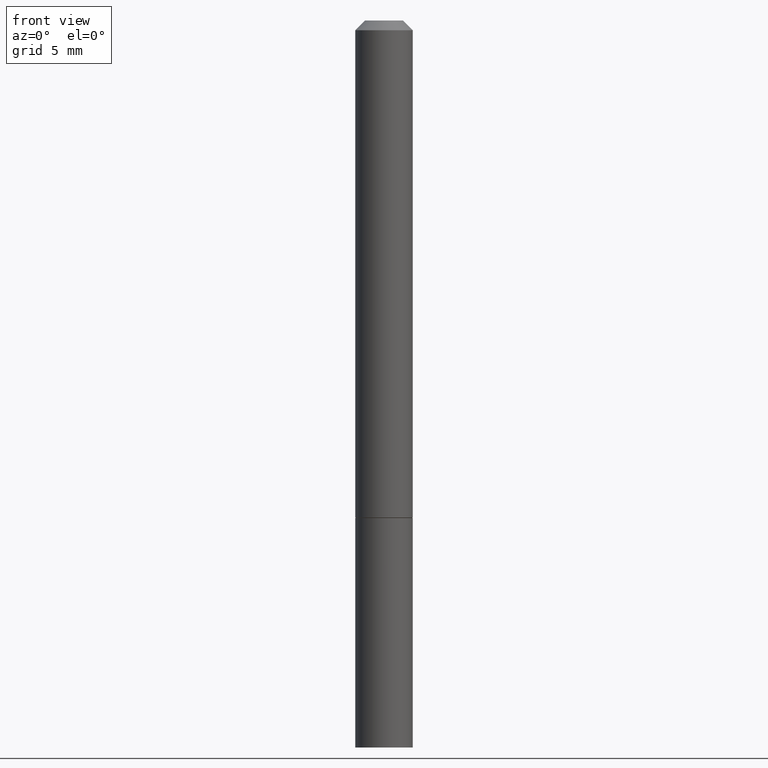
[diagram: clean part render]
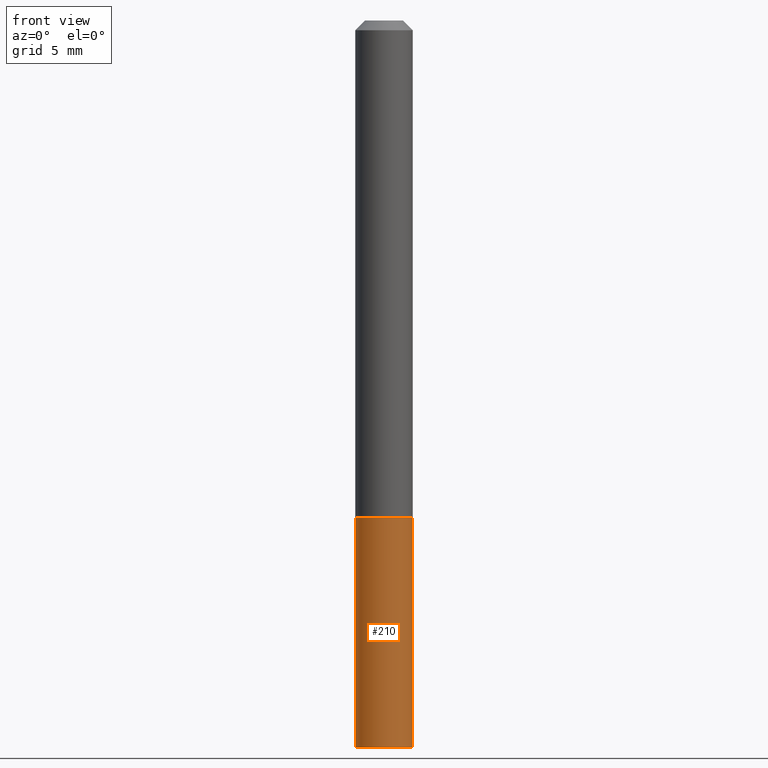
[diagram: same view with one face highlighted and labeled with its STEP entity id]
A machine part, front view. The second image highlights one B-rep face of the part: STEP entity #210.
In plain terms, the highlighted cylindrical surface (edge-blend (fillet) strip) has radius 1.4999 mm, axis along (-0, 0, 1).
Its self-contained STEP definition (entity closure, byte-faithful):
#19 = CARTESIAN_POINT ( 'NONE',  ( -0.05905000000000001914, -3.979341853342139538E-15, -1.496099999999999985 ) ) ;
#21 = DIRECTION ( 'NONE',  ( -2.445468806185136597E-29, 3.491481338843145583E-15, 1.000000000000000000 ) ) ;
#23 = AXIS2_PLACEMENT_3D ( 'NONE', #91, #77, #212 ) ;
#24 = VERTEX_POINT ( 'NONE', #60 ) ;
#35 = FACE_OUTER_BOUND ( 'NONE', #249, .T. ) ;
#38 = CARTESIAN_POINT ( 'NONE',  ( 0.05905000000000001914, -4.123439461173741806E-16, 2.879382386107500921E-30 ) ) ;
#40 = CARTESIAN_POINT ( 'NONE',  ( -0.05905000000000001914, -3.979341853342139538E-15, -1.023699999999999832 ) ) ;
#50 = VERTEX_POINT ( 'NONE', #66 ) ;
#60 = CARTESIAN_POINT ( 'NONE',  ( 0.05905000000000001914, -3.986573392691101744E-15, -1.023699999999999832 ) ) ;
#65 = DIRECTION ( 'NONE',  ( -2.445468806185136877E-29, 3.491481338843145188E-15, 1.000000000000000000 ) ) ;
#66 = CARTESIAN_POINT ( 'NONE',  ( 0.05905000000000001914, -5.635949177160603791E-15, -1.496099999999999985 ) ) ;
#74 = VECTOR ( 'NONE', #186, 39.37007874015748143 ) ;
#77 = DIRECTION ( 'NONE',  ( -2.445468806185136597E-29, 3.491481338843145583E-15, 1.000000000000000000 ) ) ;
#78 = CIRCLE ( 'NONE', #205, 0.05905000000000001914 ) ;
#80 = LINE ( 'NONE', #156, #74 ) ;
#86 = ORIENTED_EDGE ( 'NONE', *, *, #195, .T. ) ;
#91 = CARTESIAN_POINT ( 'NONE',  ( 0.000000000000000000, 0.000000000000000000, 0.000000000000000000 ) ) ;
#156 = CARTESIAN_POINT ( 'NONE',  ( -0.05905000000000001914, 4.195754854663392958E-16, -2.904631170795522943E-30 ) ) ;
#160 = DIRECTION ( 'NONE',  ( 1.000000000000000000, -6.982962677686262766E-15, 0.000000000000000000 ) ) ;
#161 = VERTEX_POINT ( 'NONE', #40 ) ;
#175 = CARTESIAN_POINT ( 'NONE',  ( 3.658665880933582389E-29, -5.223605231043229660E-15, -1.496099999999999985 ) ) ;
#186 = DIRECTION ( 'NONE',  ( -2.445468806185136877E-29, 3.491481338843145188E-15, 1.000000000000000000 ) ) ;
#189 = ORIENTED_EDGE ( 'NONE', *, *, #360, .T. ) ;
#195 = EDGE_CURVE ( 'NONE', #50, #24, #230, .T. ) ;
#197 = ORIENTED_EDGE ( 'NONE', *, *, #250, .F. ) ;
#205 = AXIS2_PLACEMENT_3D ( 'NONE', #271, #21, #160 ) ;
#210 = ADVANCED_FACE ( 'NONE', ( #35 ), #349, .T. ) ;
#212 = DIRECTION ( 'NONE',  ( 1.000000000000000000, -6.982962677686266711E-15, 4.876176775795935793E-29 ) ) ;
#223 = AXIS2_PLACEMENT_3D ( 'NONE', #175, #254, #226 ) ;
#226 = DIRECTION ( 'NONE',  ( 1.000000000000000000, -6.982962677686270655E-15, 0.000000000000000000 ) ) ;
#230 = LINE ( 'NONE', #38, #355 ) ;
#249 = EDGE_LOOP ( 'NONE', ( #197, #189, #86, #252 ) ) ;
#250 = EDGE_CURVE ( 'NONE', #315, #161, #80, .T. ) ;
#252 = ORIENTED_EDGE ( 'NONE', *, *, #325, .F. ) ;
#254 = DIRECTION ( 'NONE',  ( -2.445468806185136597E-29, 3.491481338843145583E-15, 1.000000000000000000 ) ) ;
#271 = CARTESIAN_POINT ( 'NONE',  ( 2.503426416891723784E-29, -3.574229446573727613E-15, -1.023699999999999832 ) ) ;
#285 = CIRCLE ( 'NONE', #223, 0.05905000000000001914 ) ;
#315 = VERTEX_POINT ( 'NONE', #19 ) ;
#325 = EDGE_CURVE ( 'NONE', #161, #24, #78, .T. ) ;
#349 = CYLINDRICAL_SURFACE ( 'NONE', #23, 0.05905000000000001914 ) ;
#355 = VECTOR ( 'NONE', #65, 39.37007874015748143 ) ;
#360 = EDGE_CURVE ( 'NONE', #315, #50, #285, .T. ) ;